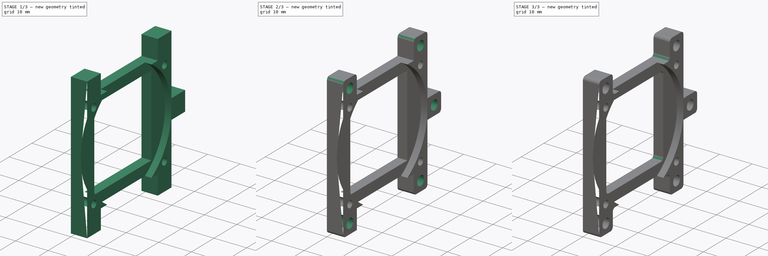
[diagram: build sequence overview — one tinted view per stage of 3, left to right]
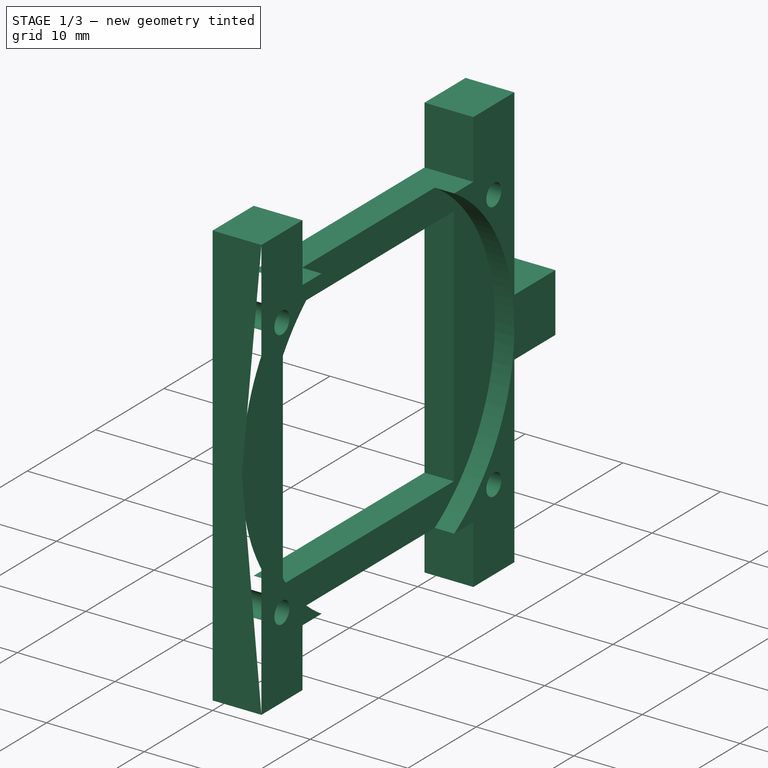
[diagram: stage 1 of 3 — iso view after this stage's code; geometry added in this stage tinted green]
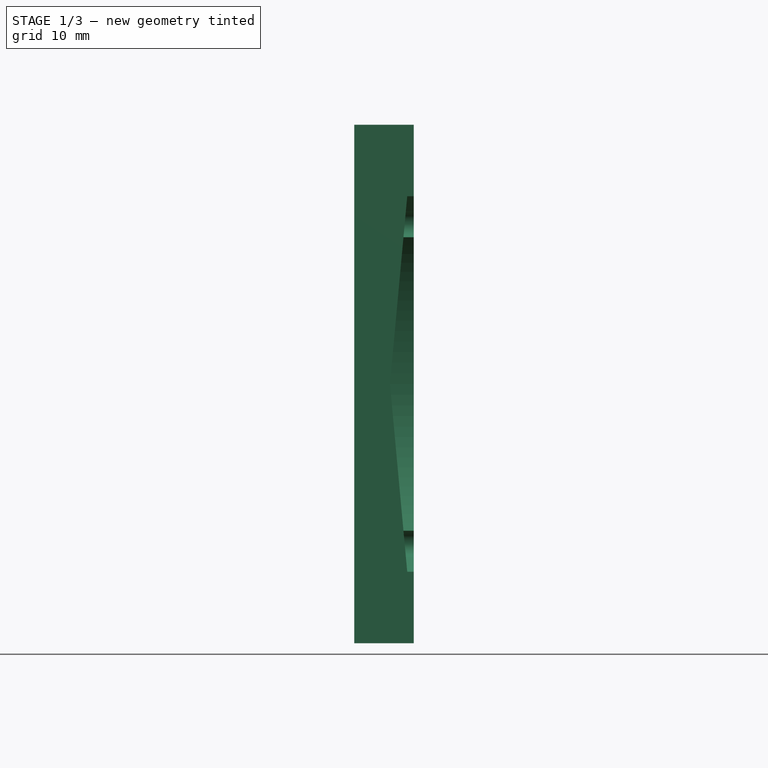
[diagram: stage 1 of 3 — front view after this stage's code; geometry added in this stage tinted green]
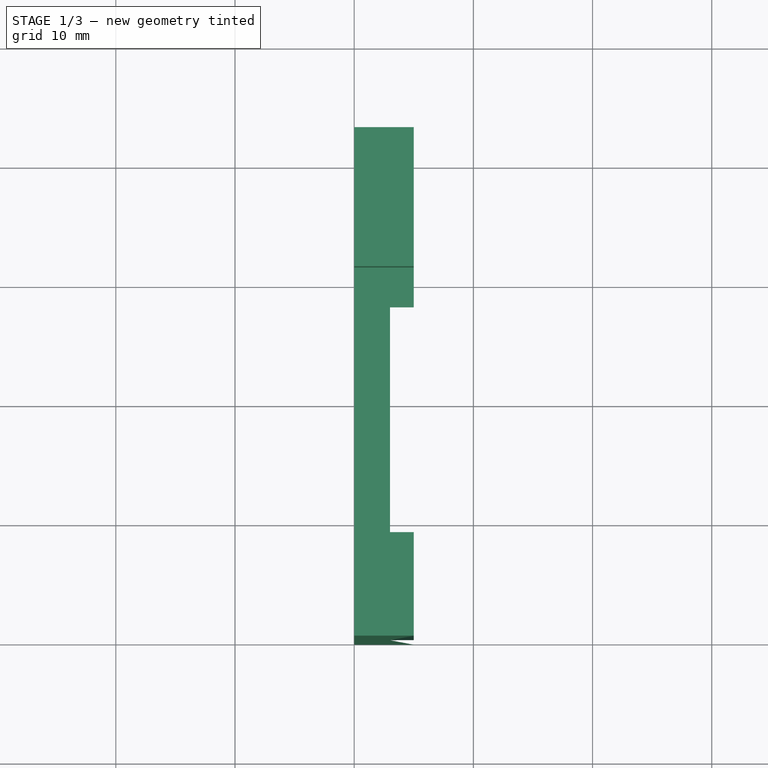
[diagram: stage 1 of 3 — top view after this stage's code; geometry added in this stage tinted green]
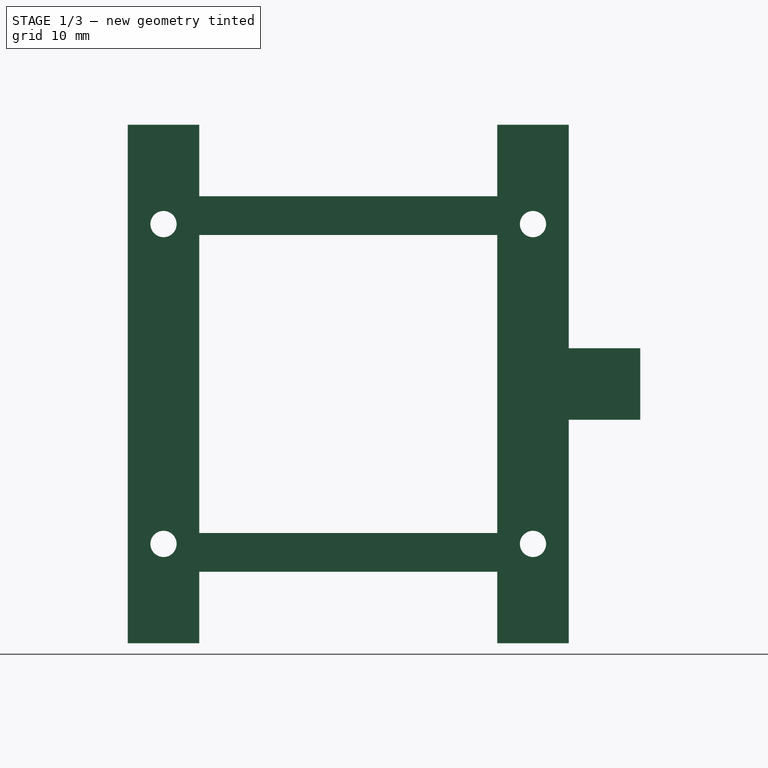
[diagram: stage 1 of 3 — right view after this stage's code; geometry added in this stage tinted green]
FCSTD DOCUMENT  (FreeCAD 0.19R24276 (Git))
Label: Lens_holder_Part_1_V1
License: All rights reserved
LicenseURL: http://en.wikipedia.org/wiki/All_rights_reserved
objects: Sketcher::SketchObject×4, PartDesign::Fillet×4, PartDesign::Pocket×3, PartDesign::Pad×1, PartDesign::Body×1
note: 21 computed .brp shape members not serialized (recipe doc carries the construction recipe); baked Part::Feature solids carry a one-line shape summary decoded from their .brp

FEATURE [Sketcher::SketchObject] Sketch  label="Sketch_31,5x37"
  FullyConstrained = false
  MapMode = 5
  Placement = pos=(0,0,0) rot=(0.57735,0.57735,0.57735;2.0944rad)
  Support = -> [YZ_Plane]
  sketch-geometry (37):
    g0: LineSegment StartX=0 StartY=0 StartZ=0 EndX=37 EndY=0 EndZ=0
    g1: LineSegment StartX=37 StartY=0 StartZ=0 EndX=37 EndY=31.5 EndZ=0
    g2: LineSegment StartX=37 StartY=31.5 StartZ=0 EndX=0 EndY=31.5 EndZ=0
    g3: LineSegment StartX=0 StartY=31.5 StartZ=0 EndX=0 EndY=0 EndZ=0
    g4: Circle CenterX=18.5 CenterY=15.75 CenterZ=0 NormalX=0 NormalY=0 NormalZ=1 AngleXU=0 Radius=3.83506
    g5: LineSegment StartX=18.5 StartY=15.75 StartZ=0 EndX=37 EndY=15.75 EndZ=0
    g6: LineSegment StartX=31 StartY=28.25 StartZ=0 EndX=6 EndY=28.25 EndZ=0
    g7: LineSegment StartX=6 StartY=28.25 StartZ=0 EndX=6 EndY=3.25 EndZ=0
    g8: LineSegment StartX=6 StartY=3.25 StartZ=0 EndX=31 EndY=3.25 EndZ=0
    g9: LineSegment StartX=31 StartY=3.25 StartZ=0 EndX=31 EndY=28.25 EndZ=0
    g10: Circle CenterX=18.5 CenterY=15.75 CenterZ=0 NormalX=0 NormalY=0 NormalZ=1 AngleXU=0 Radius=17.6777
    g11: LineSegment StartX=18.5 StartY=15.75 StartZ=0 EndX=18.5 EndY=31.5 EndZ=0
    g12: LineSegment StartX=37 StartY=31.5 StartZ=0 EndX=31 EndY=31.5 EndZ=0
    g13: LineSegment StartX=31 StartY=31.5 StartZ=0 EndX=31 EndY=37.5 EndZ=0
    g14: LineSegment StartX=31 StartY=37.5 StartZ=0 EndX=37 EndY=37.5 EndZ=0
    g15: LineSegment StartX=37 StartY=37.5 StartZ=0 EndX=37 EndY=31.5 EndZ=0
    g16: LineSegment StartX=31 StartY=31.5 StartZ=0 EndX=0 EndY=31.5 EndZ=0
    g17: LineSegment StartX=6 StartY=37.5 StartZ=0 EndX=0 EndY=37.5 EndZ=0
    g18: LineSegment StartX=6 StartY=31.5 StartZ=0 EndX=6 EndY=37.5 EndZ=0
    g19: LineSegment StartX=6 StartY=31.5 StartZ=0 EndX=31 EndY=31.5 EndZ=0
    g20: LineSegment StartX=0 StartY=37.5 StartZ=0 EndX=0 EndY=-6 EndZ=0
    g21: LineSegment StartX=37 StartY=0 StartZ=0 EndX=31 EndY=0 EndZ=0
    g22: LineSegment StartX=31 StartY=0 StartZ=0 EndX=31 EndY=-6 EndZ=0
    g23: LineSegment StartX=31 StartY=-6 StartZ=0 EndX=37 EndY=-6 EndZ=0
    g24: LineSegment StartX=37 StartY=-6 StartZ=0 EndX=37 EndY=0 EndZ=0
    g25: LineSegment StartX=6 StartY=-6 StartZ=0 EndX=0 EndY=-6 EndZ=0
    g26: LineSegment StartX=6 StartY=0 StartZ=0 EndX=6 EndY=-6 EndZ=0
    g27: LineSegment StartX=37 StartY=37.5 StartZ=0 EndX=37 EndY=-6 EndZ=0
    g28: LineSegment StartX=0 StartY=37.5 StartZ=0 EndX=0 EndY=-6 EndZ=0
    g29: LineSegment StartX=6 StartY=0 StartZ=0 EndX=31 EndY=0 EndZ=0
    g30: LineSegment StartX=6 StartY=31.5 StartZ=0 EndX=31 EndY=31.5 EndZ=0
    g31: LineSegment StartX=37 StartY=18.75 StartZ=0 EndX=43 EndY=18.75 EndZ=0
    g32: LineSegment StartX=43 StartY=18.75 StartZ=0 EndX=43 EndY=12.75 EndZ=0
    g33: LineSegment StartX=43 StartY=12.75 StartZ=0 EndX=37 EndY=12.75 EndZ=0
    g34: LineSegment StartX=37 StartY=12.75 StartZ=0 EndX=37 EndY=18.75 EndZ=0
    g35: LineSegment StartX=37 StartY=37.5 StartZ=0 EndX=37 EndY=18.75 EndZ=0
    g36: LineSegment StartX=37 StartY=12.75 StartZ=0 EndX=37 EndY=-6 EndZ=0
  constraints (96):
    c: Coincident(g0,g1)
    c: Coincident(g1,g2)
    c: Coincident(g2,g3)
    c: Coincident(g3,g0)
    c: Horizontal(g0)
    c: Horizontal(g2)
    c: Vertical(g1)
    c: Vertical(g3)
    c: Coincident(g0,g-1)
    c: DistanceY(g3,g3) = 31.5
    c: DistanceX(g4,g0) = 18.5
    c: Coincident(g5,g4)
    c: Horizontal(g5)
    c: Symmetric(g1,g0,g5)
    c: Coincident(g6,g7)
    c: Coincident(g7,g8)
    c: Coincident(g8,g9)
    c: Coincident(g9,g6)
    c: Equal(g6,g7)
    c: Equal(g6,g8)
    c: Equal(g6,g9)
    c: PointOnObject(g6,g10)
    c: PointOnObject(g7,g10)
    c: PointOnObject(g8,g10)
    c: PointOnObject(g9,g10)
    c: Coincident(g10,g4)
    c: Horizontal(g6)
    c: Coincident(g11,g4)
    c: Vertical(g11)
    c: Symmetric(g2,g1,g11)
    c: DistanceX(g8,g8) = 25
    c: Coincident(g12,g13)
    c: Coincident(g13,g14)
    c: Coincident(g14,g15)
    c: Coincident(g15,g12)
    c: Horizontal(g12)
    c: Horizontal(g14)
    c: Vertical(g13)
    c: Vertical(g15)
    c: Coincident(g12,g1)
    c: DistanceY(g15,g15) = 6
    c: DistanceX(g14,g14) = 6
    c: Coincident(g16,g13)
    c: Coincident(g16,g3)
    c: Coincident(g18,g17)
    c: Horizontal(g17)
    c: Vertical(g18)
    c: Horizontal(g18,g13)
    c: Coincident(g19,g13)
    c: Coincident(g20,g17)
    c: Vertical(g3,g17)
    c: Horizontal(g17,g13)
    c: Equal(g17,g14)
    c: Coincident(g19,g18)
    c: Coincident(g21,g22)
    c: Coincident(g22,g23)
    c: Coincident(g23,g24)
    c: Coincident(g24,g21)
    c: Horizontal(g21)
    c: Horizontal(g23)
    c: Vertical(g22)
    c: Vertical(g24)
    c: Coincident(g26,g25)
    c: Horizontal(g25)
    c: Vertical(g26)
    c: Equal(g25,g23)
    c: Vertical(g22,g13)
    c: Equal(g22,g13)
    c: Coincident(g21,g0)
    c: Horizontal(g25,g22)
    c: Vertical(g25,g0)
    c: Coincident(g20,g25)
    c: Horizontal(g26,g22)
    c: Coincident(g27,g14)
    c: Coincident(g27,g23)
    c: Coincident(g28,g17)
    c: Coincident(g28,g25)
    c: Coincident(g29,g26)
    c: Coincident(g29,g22)
    c: Coincident(g30,g18)
    c: Coincident(g30,g13)
    c: Coincident(g31,g32)
    c: Coincident(g32,g33)
    c: Coincident(g33,g34)
    c: Coincident(g34,g31)
    c: Horizontal(g31)
    c: Horizontal(g33)
    c: Vertical(g32)
    c: Vertical(g34)
    c: DistanceY(g32,g32) = 6
    c: DistanceX(g33,g33) = 6
    c: Symmetric(g31,g33,g5)
    c: Coincident(g35,g14)
    c: Coincident(g36,g33)
    c: Coincident(g35,g31)
    c: Coincident(g36,g23)
FEATURE [PartDesign::Pad] Pad  label="Pad_h5"
  Direction = (1,1,1)
  Length = 5
  Length2 = 100
  Placement = pos=(0,0,0) rot=(0.57735,0.57735,0.57735;2.0944rad)
  Profile = -> Sketch
  Type = 0
FEATURE [Sketcher::SketchObject] Sketch004  label="Sketch004_4otv"
  FullyConstrained = false
  MapMode = 5
  Placement = pos=(0,0,0) rot=(0.57735,0.57735,0.57735;2.0944rad)
  Support = -> [YZ_Plane]
  sketch-geometry (41):
    g0: LineSegment StartX=0 StartY=0 StartZ=0 EndX=37 EndY=0 EndZ=0
    g1: LineSegment StartX=37 StartY=0 StartZ=0 EndX=37 EndY=31.5 EndZ=0
    g2: LineSegment StartX=37 StartY=31.5 StartZ=0 EndX=0 EndY=31.5 EndZ=0
    g3: LineSegment StartX=0 StartY=31.5 StartZ=0 EndX=0 EndY=0 EndZ=0
    g4: Circle CenterX=18.5 CenterY=15.75 CenterZ=0 NormalX=0 NormalY=0 NormalZ=1 AngleXU=0 Radius=3.83506
    g5: LineSegment StartX=18.5 StartY=15.75 StartZ=0 EndX=37 EndY=15.75 EndZ=0
    g6: LineSegment StartX=31 StartY=28.25 StartZ=0 EndX=6 EndY=28.25 EndZ=0
    g7: LineSegment StartX=6 StartY=28.25 StartZ=0 EndX=6 EndY=3.25 EndZ=0
    g8: LineSegment StartX=6 StartY=3.25 StartZ=0 EndX=31 EndY=3.25 EndZ=0
    g9: LineSegment StartX=31 StartY=3.25 StartZ=0 EndX=31 EndY=28.25 EndZ=0
    g10: Circle CenterX=18.5 CenterY=15.75 CenterZ=0 NormalX=0 NormalY=0 NormalZ=1 AngleXU=0 Radius=17.6777
    g11: LineSegment StartX=18.5 StartY=15.75 StartZ=0 EndX=18.5 EndY=31.5 EndZ=0
    g12: LineSegment StartX=37 StartY=31.5 StartZ=0 EndX=32 EndY=31.5 EndZ=0
    g13: LineSegment StartX=32 StartY=31.5 StartZ=0 EndX=32 EndY=37.5 EndZ=0
    g14: LineSegment StartX=32 StartY=37.5 StartZ=0 EndX=37 EndY=37.5 EndZ=0
    g15: LineSegment StartX=37 StartY=37.5 StartZ=0 EndX=37 EndY=31.5 EndZ=0
    g16: LineSegment StartX=32 StartY=31.5 StartZ=0 EndX=0 EndY=31.5 EndZ=0
    g17: LineSegment StartX=5 StartY=37.5 StartZ=0 EndX=0 EndY=37.5 EndZ=0
    g18: LineSegment StartX=5 StartY=31.5 StartZ=0 EndX=5 EndY=37.5 EndZ=0
    g19: LineSegment StartX=5 StartY=31.5 StartZ=0 EndX=32 EndY=31.5 EndZ=0
    g20: LineSegment StartX=0 StartY=37.5 StartZ=0 EndX=0 EndY=-6 EndZ=0
    g21: LineSegment StartX=37 StartY=0 StartZ=0 EndX=32 EndY=0 EndZ=0
    g22: LineSegment StartX=32 StartY=0 StartZ=0 EndX=32 EndY=-6 EndZ=0
    g23: LineSegment StartX=32 StartY=-6 StartZ=0 EndX=37 EndY=-6 EndZ=0
    g24: LineSegment StartX=37 StartY=-6 StartZ=0 EndX=37 EndY=0 EndZ=0
    g25: LineSegment StartX=5 StartY=-6 StartZ=0 EndX=0 EndY=-6 EndZ=0
    g26: LineSegment StartX=5 StartY=0 StartZ=0 EndX=5 EndY=-6 EndZ=0
    g27: LineSegment StartX=37 StartY=37.5 StartZ=0 EndX=37 EndY=-6 EndZ=0
    g28: LineSegment StartX=0 StartY=37.5 StartZ=0 EndX=0 EndY=-6 EndZ=0
    g29: LineSegment StartX=5 StartY=0 StartZ=0 EndX=32 EndY=0 EndZ=0
    g30: LineSegment StartX=5 StartY=31.5 StartZ=0 EndX=32 EndY=31.5 EndZ=0
    g31: Circle CenterX=34 CenterY=29.1664 CenterZ=0 NormalX=0 NormalY=0 NormalZ=1 AngleXU=0 Radius=1.1
    g32: Circle CenterX=3 CenterY=2.33359 CenterZ=0 NormalX=0 NormalY=0 NormalZ=1 AngleXU=0 Radius=1.1
    g33: Circle CenterX=3 CenterY=29.1664 CenterZ=0 NormalX=0 NormalY=0 NormalZ=1 AngleXU=0 Radius=1.1
    g34: Circle CenterX=34 CenterY=2.33359 CenterZ=0 NormalX=0 NormalY=0 NormalZ=1 AngleXU=0 Radius=1.1
    g35: Circle CenterX=18.5 CenterY=15.75 CenterZ=0 NormalX=0 NormalY=0 NormalZ=1 AngleXU=0 Radius=20.5
    g36: LineSegment StartX=18.5 StartY=15.75 StartZ=0 EndX=3 EndY=29.1664 EndZ=0
    g37: LineSegment StartX=18.5 StartY=15.75 StartZ=0 EndX=34 EndY=2.33359 EndZ=0
    g38: LineSegment StartX=18.5 StartY=15.75 StartZ=0 EndX=34 EndY=29.1664 EndZ=0
    g39: LineSegment StartX=18.5 StartY=15.75 StartZ=0 EndX=3 EndY=2.33359 EndZ=0
    g40: LineSegment StartX=3 StartY=29.1664 StartZ=0 EndX=34 EndY=29.1664 EndZ=0
  constraints (105):
    c: Coincident(g0,g1)
    c: Coincident(g1,g2)
    c: Coincident(g2,g3)
    c: Coincident(g3,g0)
    c: Horizontal(g0)
    c: Horizontal(g2)
    c: Vertical(g1)
    c: Vertical(g3)
    c: Coincident(g0,g-1)
    c: DistanceY(g3,g3) = 31.5
    c: DistanceX(g4,g0) = 18.5
    c: Coincident(g5,g4)
    c: Horizontal(g5)
    c: Symmetric(g1,g0,g5)
    c: Coincident(g6,g7)
    c: Coincident(g7,g8)
    c: Coincident(g8,g9)
    c: Coincident(g9,g6)
    c: Equal(g6,g7)
    c: Equal(g6,g8)
    c: Equal(g6,g9)
    c: PointOnObject(g6,g10)
    c: PointOnObject(g7,g10)
    c: PointOnObject(g8,g10)
    c: PointOnObject(g9,g10)
    c: Coincident(g10,g4)
    c: Horizontal(g6)
    c: Coincident(g11,g4)
    c: Vertical(g11)
    c: Symmetric(g2,g1,g11)
    c: DistanceX(g8,g8) = 25
    c: Coincident(g12,g13)
    c: Coincident(g13,g14)
    c: Coincident(g14,g15)
    c: Coincident(g15,g12)
    c: Horizontal(g12)
    c: Horizontal(g14)
    c: Vertical(g13)
    c: Vertical(g15)
    c: Coincident(g12,g1)
    c: DistanceY(g15,g15) = 6
    c: DistanceX(g14,g14) = 5
    c: Coincident(g16,g13)
    c: Coincident(g16,g3)
    c: Coincident(g18,g17)
    c: Horizontal(g17)
    c: Vertical(g18)
    c: Horizontal(g18,g13)
    c: Coincident(g19,g13)
    c: Coincident(g20,g17)
    c: Vertical(g3,g17)
    c: Horizontal(g17,g13)
    c: Equal(g17,g14)
    c: Coincident(g19,g18)
    c: Coincident(g21,g22)
    c: Coincident(g22,g23)
    c: Coincident(g23,g24)
    c: Coincident(g24,g21)
    c: Horizontal(g21)
    c: Horizontal(g23)
    c: Vertical(g22)
    c: Vertical(g24)
    c: Coincident(g26,g25)
    c: Horizontal(g25)
    c: Vertical(g26)
    c: Equal(g25,g23)
    c: Vertical(g22,g13)
    c: Equal(g22,g13)
    c: Coincident(g21,g0)
    c: Horizontal(g25,g22)
    c: Vertical(g25,g0)
    c: Coincident(g20,g25)
    c: Horizontal(g26,g22)
    c: Coincident(g27,g14)
    c: Coincident(g27,g23)
    c: Coincident(g28,g17)
    c: Coincident(g28,g25)
    c: Coincident(g29,g26)
    c: Coincident(g29,g22)
    c: Coincident(g30,g18)
    c: Coincident(g30,g13)
    c: Equal(g32,g31)
    c: Diameter(g34) = 2.2
    c: Equal(g34,g33)
    c: Vertical(g32,g33)
    c: Vertical(g34,g31)
    c: Horizontal(g32,g34)
    c: Horizontal(g33,g31)
    c: Coincident(g35,g4)
    c: PointOnObject(g33,g35)
    c: Coincident(g36,g4)
    c: Coincident(g36,g33)
    c: Coincident(g37,g4)
    c: Coincident(g38,g4)
    c: PointOnObject(g38,g35)
    c: Coincident(g31,g38)
    c: Diameter(g35) = 41
    c: Coincident(g39,g4)
    c: PointOnObject(g39,g35)
    c: Coincident(g32,g39)
    c: Coincident(g34,g37)
    c: Coincident(g40,g33)
    c: Coincident(g40,g31)
    c: DistanceX(g40,g40) = 31
    c: Equal(g34,g32)
FEATURE [PartDesign::Pocket] Pocket001
  BaseFeature = -> Pad
  Length = 5
  Length2 = 100
  Placement = pos=(0,0,0) rot=(0.57735,0.57735,0.57735;2.0944rad)
  Profile = -> Sketch004
  Reversed = true
  Type = 1
FEATURE [Sketcher::SketchObject] Sketch005
  FullyConstrained = true
  MapMode = 5
  Placement = pos=(5,-2.2e-15,1.7e-15) rot=(0.57735,0.57735,0.57735;2.0944rad)
  Support = -> [Pad]
  sketch-geometry (1):
    g0: Circle CenterX=18.5 CenterY=15.75 CenterZ=0 NormalX=0 NormalY=0 NormalZ=1 AngleXU=0 Radius=18.5
  constraints (3):
    c: Diameter(g0) = 37
    c: DistanceX(g-1,g0) = 18.5
    c: DistanceY(g-1,g0) = 15.75
FEATURE [PartDesign::Pocket] Pocket
  BaseFeature = -> Pocket001
  Length = 2
  Length2 = 100
  Placement = pos=(0,0,0) rot=(0.57735,0.57735,0.57735;2.0944rad)
  Profile = -> Sketch005
  Type = 0
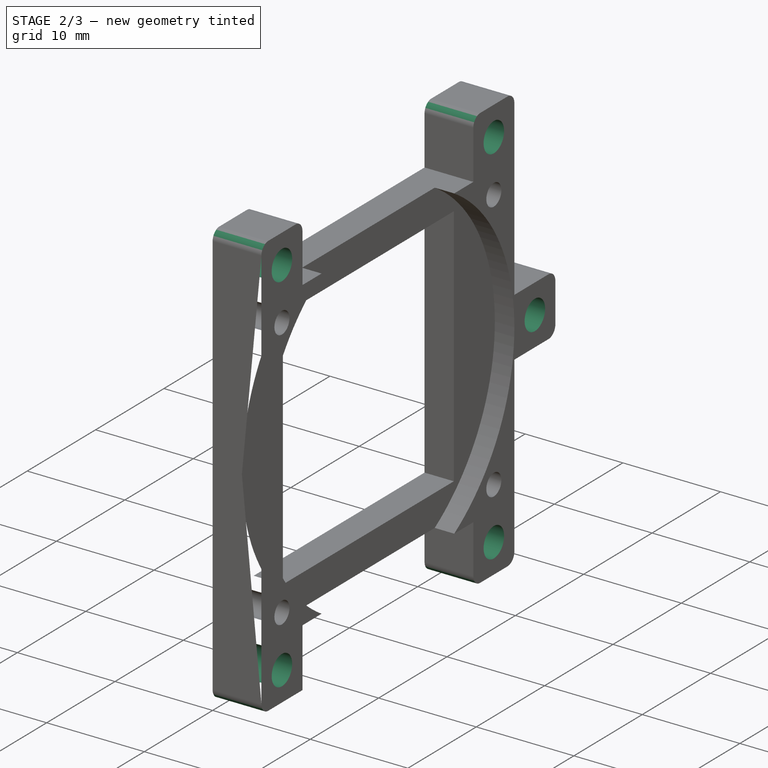
[diagram: stage 2 of 3 — iso view after this stage's code; geometry added in this stage tinted green]
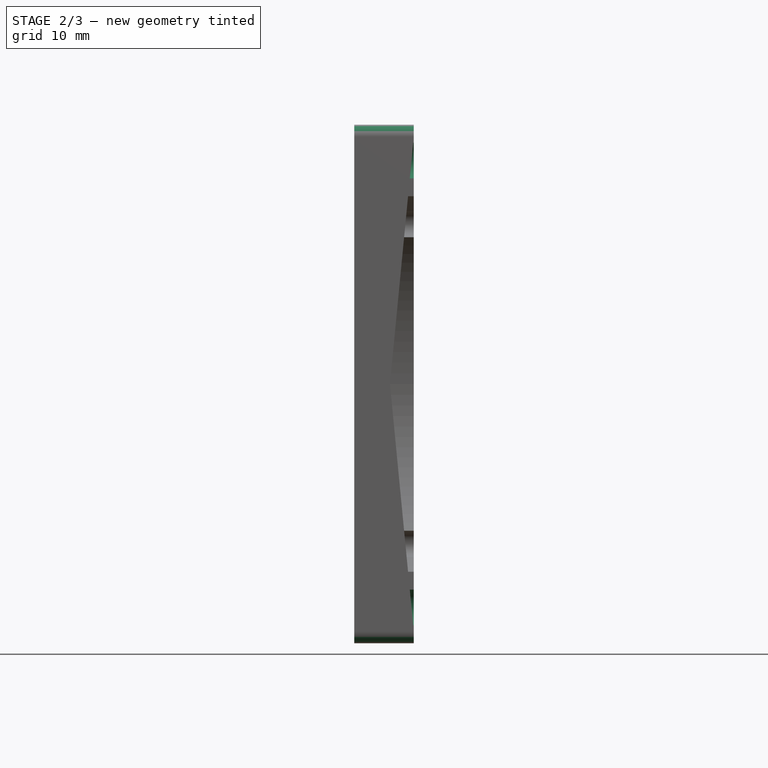
[diagram: stage 2 of 3 — front view after this stage's code; geometry added in this stage tinted green]
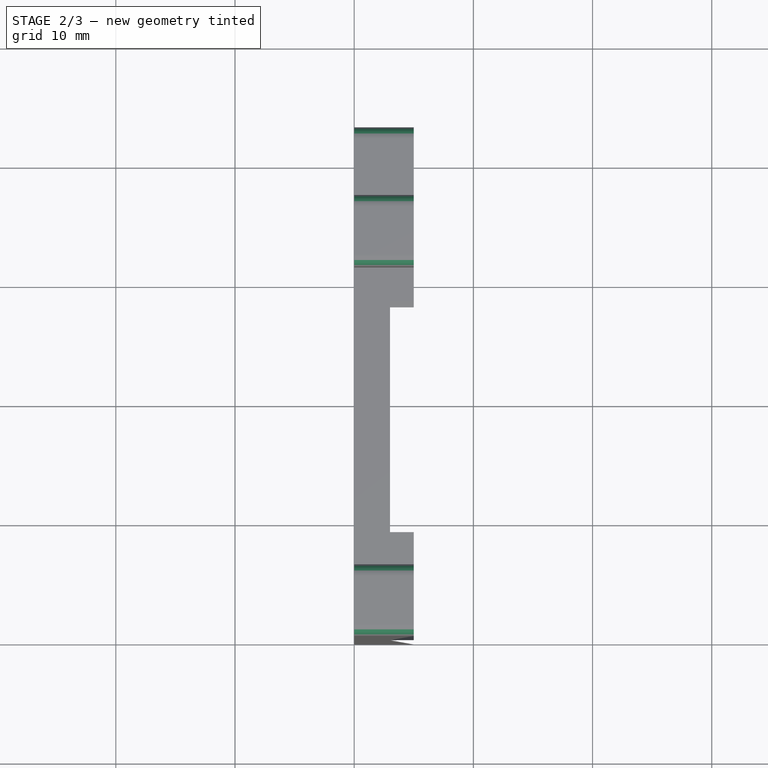
[diagram: stage 2 of 3 — top view after this stage's code; geometry added in this stage tinted green]
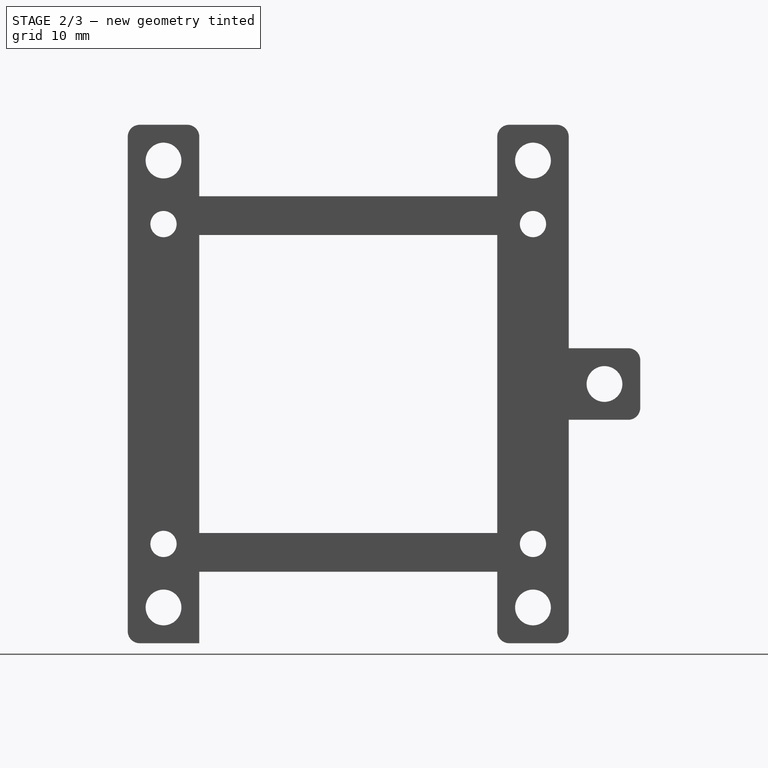
[diagram: stage 2 of 3 — right view after this stage's code; geometry added in this stage tinted green]
FEATURE [Sketcher::SketchObject] Sketch006
  FullyConstrained = false
  MapMode = 5
  Placement = pos=(5,-4.4e-15,2.8e-15) rot=(0.57735,0.57735,0.57735;2.0944rad)
  Support = -> [Pocket]
  sketch-geometry (14):
    g0: Circle CenterX=3 CenterY=34.5 CenterZ=0 NormalX=0 NormalY=0 NormalZ=1 AngleXU=0 Radius=1.5
    g1: Circle CenterX=34 CenterY=34.5 CenterZ=0 NormalX=0 NormalY=0 NormalZ=1 AngleXU=0 Radius=1.5
    g2: Circle CenterX=40 CenterY=15.75 CenterZ=0 NormalX=0 NormalY=0 NormalZ=1 AngleXU=0 Radius=1.5
    g3: Circle CenterX=34 CenterY=-3 CenterZ=0 NormalX=0 NormalY=0 NormalZ=1 AngleXU=0 Radius=1.5
    g4: Circle CenterX=3 CenterY=-3 CenterZ=0 NormalX=0 NormalY=0 NormalZ=1 AngleXU=0 Radius=1.5
    g5: LineSegment StartX=0 StartY=-6 StartZ=0 EndX=37 EndY=-6 EndZ=0
    g6: LineSegment StartX=37 StartY=-6 StartZ=0 EndX=37 EndY=37.5 EndZ=0
    g7: LineSegment StartX=37 StartY=37.5 StartZ=0 EndX=0 EndY=37.5 EndZ=0
    g8: LineSegment StartX=0 StartY=37.5 StartZ=0 EndX=0 EndY=-6 EndZ=0
    g9: LineSegment StartX=43 StartY=12.75 StartZ=0 EndX=37 EndY=12.75 EndZ=0
    g10: LineSegment StartX=37 StartY=12.75 StartZ=0 EndX=37 EndY=18.75 EndZ=0
    g11: LineSegment StartX=37 StartY=18.75 StartZ=0 EndX=43 EndY=18.75 EndZ=0
    g12: LineSegment StartX=43 StartY=18.75 StartZ=0 EndX=43 EndY=12.75 EndZ=0
    g13: LineSegment StartX=13.4118 StartY=15.75 StartZ=0 EndX=37 EndY=15.75 EndZ=0
  constraints (37):
    c: Diameter(g4) = 3
    c: Equal(g4, g0-g3) x4
    c: Coincident(g5,g6)
    c: Coincident(g6,g7)
    c: Coincident(g7,g8)
    c: Coincident(g8,g5)
    c: Horizontal(g5)
    c: Horizontal(g7)
    c: Vertical(g6)
    c: Vertical(g8)
    c: PointOnObject(g5,g-2)
    c: DistanceY(g5,g-1) = 6
    c: DistanceY(g5,g7) = 43.5
    c: DistanceX(g5,g5) = 37
    c: DistanceX(g5,g4) = 3
    c: DistanceX(g3,g5) = 3
    c: Vertical(g4,g0)
    c: Vertical(g1,g3)
    c: DistanceY(g5,g4) = 3
    c: DistanceY(g0,g7) = 3
    c: Horizontal(g0,g1)
    c: Horizontal(g4,g3)
    c: Coincident(g9,g10)
    c: Coincident(g10,g11)
    c: Coincident(g11,g12)
    c: Coincident(g12,g9)
    c: Horizontal(g9)
    c: Horizontal(g11)
    c: Vertical(g10)
    c: Vertical(g12)
    c: DistanceY(g12,g12) = 6
    c: DistanceX(g11,g11) = 6
    c: Horizontal(g13)
    c: Symmetric(g5,g6,g13)
    c: Symmetric(g9,g10,g13)
    c: Horizontal(g13,g2)
    c: DistanceX(g9,g2) = 3
FEATURE [PartDesign::Pocket] Pocket002
  BaseFeature = -> Pocket
  Length = 5
  Length2 = 100
  Placement = pos=(0,0,0) rot=(0.57735,0.57735,0.57735;2.0944rad)
  Profile = -> Sketch006
  Type = 1
FEATURE [PartDesign::Fillet] Fillet
  Base = -> Pocket002 [Edge55,Edge59,Edge77,Edge79,Edge75,Edge53,Edge49,Edge47,Edge44]
  BaseFeature = -> Pocket002
  Placement = pos=(0,0,0) rot=(0.57735,0.57735,0.57735;2.0944rad)
  Radius = 1
  SupportTransform = false
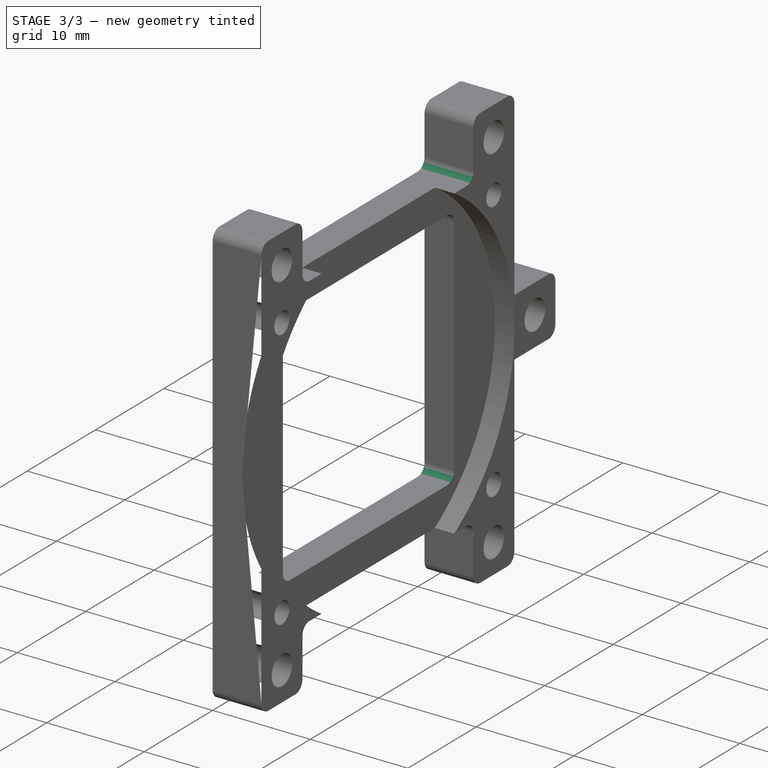
[diagram: stage 3 of 3 — iso view after this stage's code; geometry added in this stage tinted green]
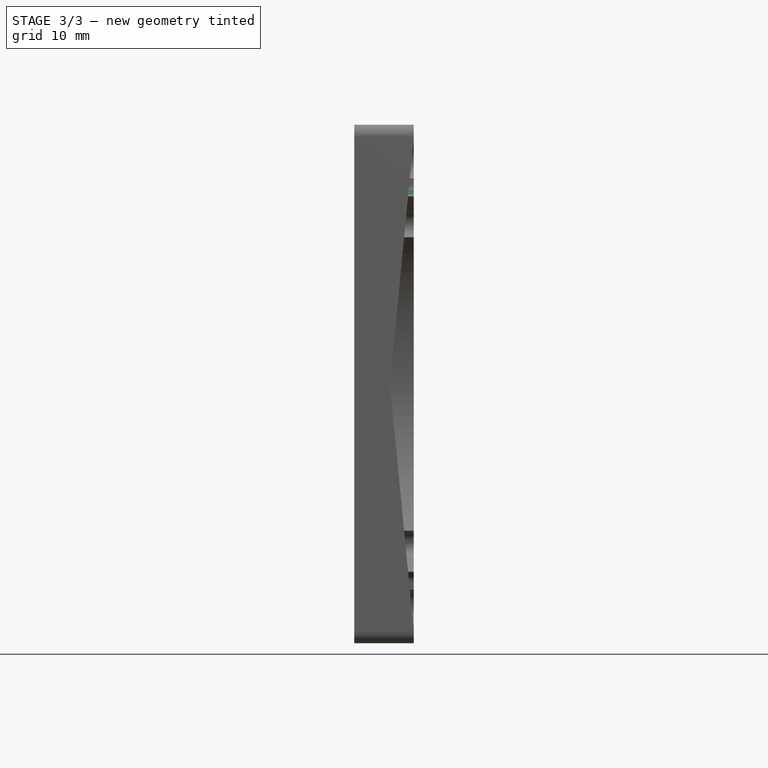
[diagram: stage 3 of 3 — front view after this stage's code; geometry added in this stage tinted green]
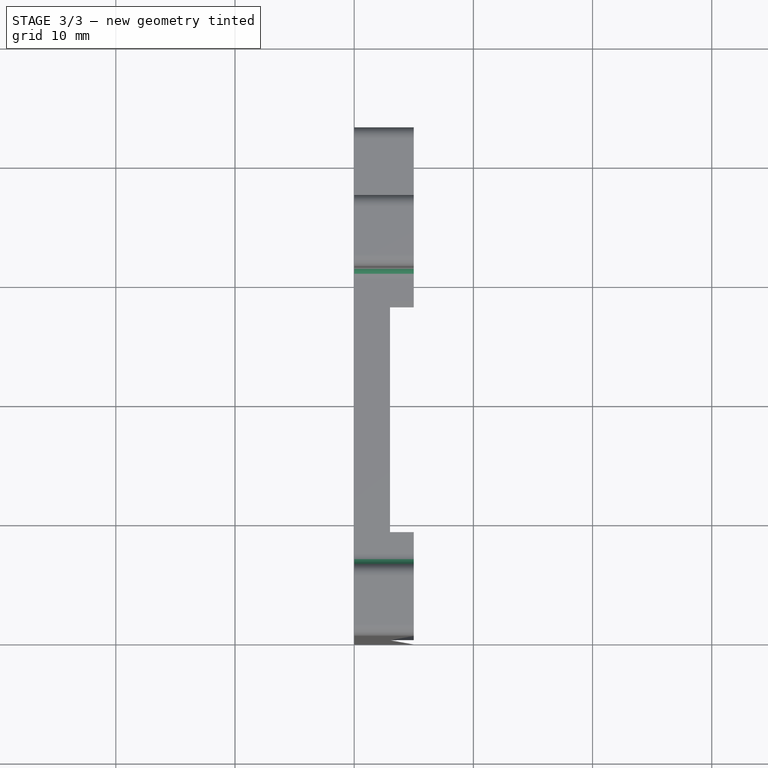
[diagram: stage 3 of 3 — top view after this stage's code; geometry added in this stage tinted green]
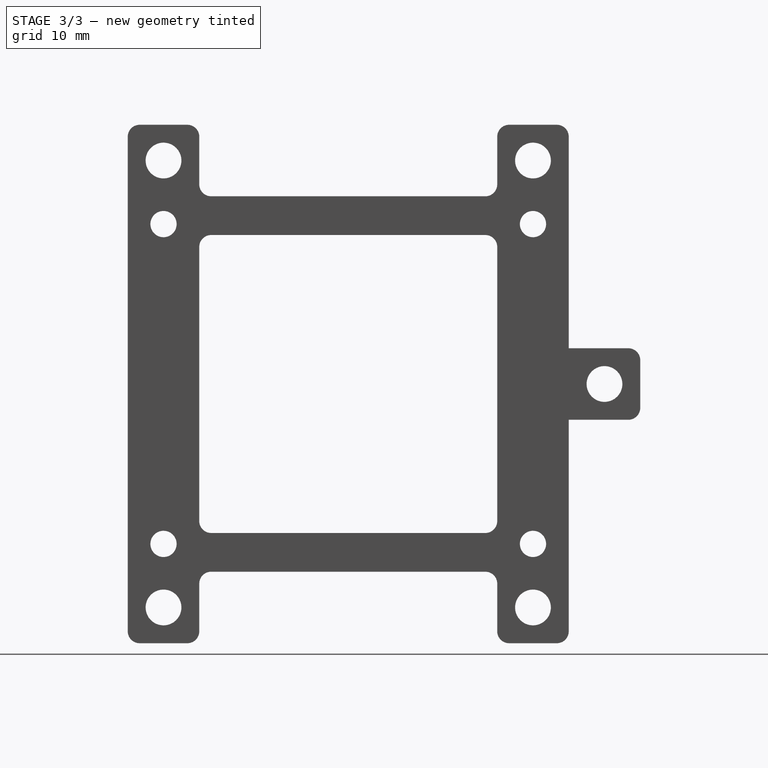
[diagram: stage 3 of 3 — right view after this stage's code; geometry added in this stage tinted green]
FEATURE [PartDesign::Fillet] Fillet001
  Base = -> Fillet [Edge72]
  BaseFeature = -> Fillet
  Placement = pos=(0,0,0) rot=(0.57735,0.57735,0.57735;2.0944rad)
  Radius = 1
  SupportTransform = false
FEATURE [PartDesign::Fillet] Fillet002
  Base = -> Fillet001 [Edge117,Edge116,Edge114,Edge112]
  BaseFeature = -> Fillet001
  Placement = pos=(0,0,0) rot=(0.57735,0.57735,0.57735;2.0944rad)
  Radius = 1
  SupportTransform = false
FEATURE [PartDesign::Fillet] Fillet003
  Base = -> Fillet002 [Edge101,Edge97,Edge65,Edge61]
  BaseFeature = -> Fillet002
  Placement = pos=(0,0,0) rot=(0.57735,0.57735,0.57735;2.0944rad)
  Radius = 1
  SupportTransform = false
FEATURE [PartDesign::Body] Body
  Group = -> [Sketch,Pad,Sketch004,Pocket001,Sketch005,Pocket,Sketch006,Pocket002,Fillet,Fillet001,Fillet002,Fillet003]
  Origin = -> Origin
  Tip = -> Fillet003
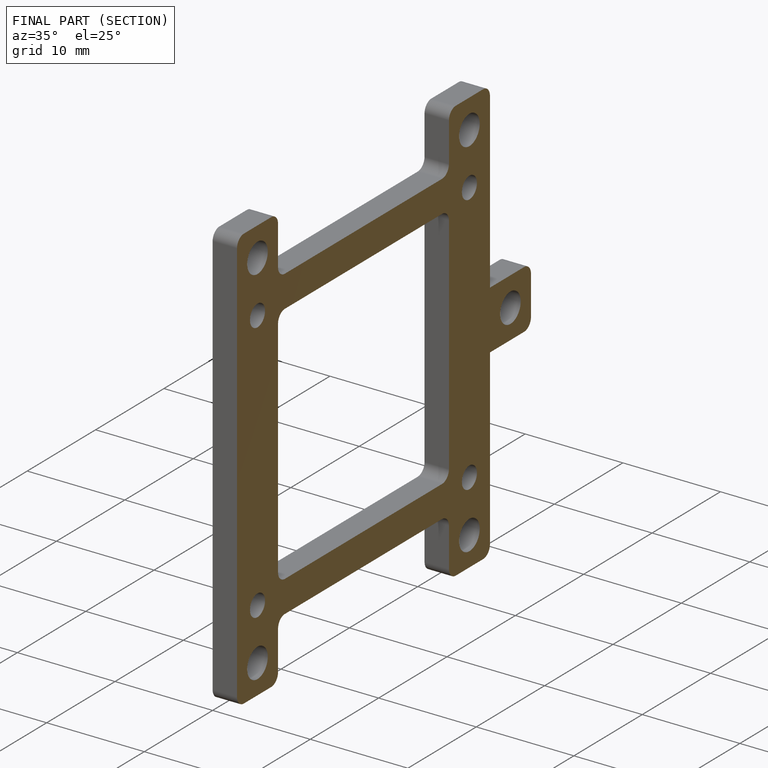
[diagram: finished part — half-section view (interior)]
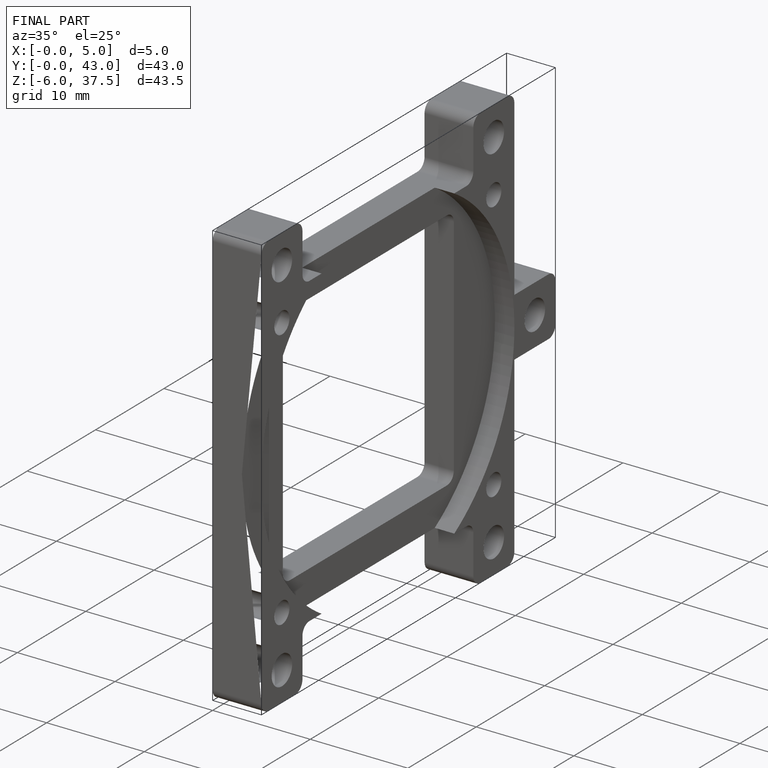
[diagram: finished part — iso view with bounding-box wireframe]
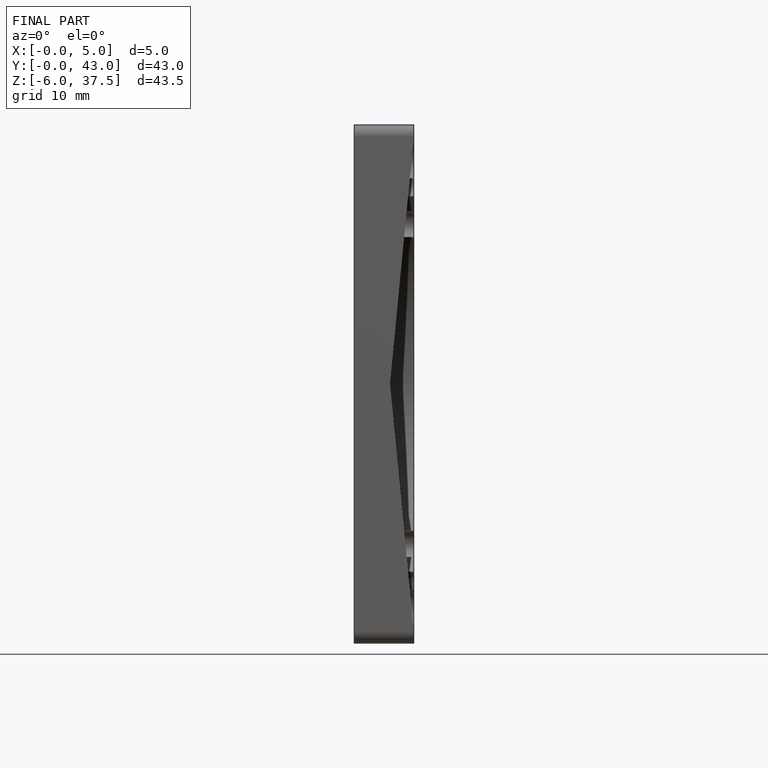
[diagram: finished part — front view with bounding-box wireframe]
